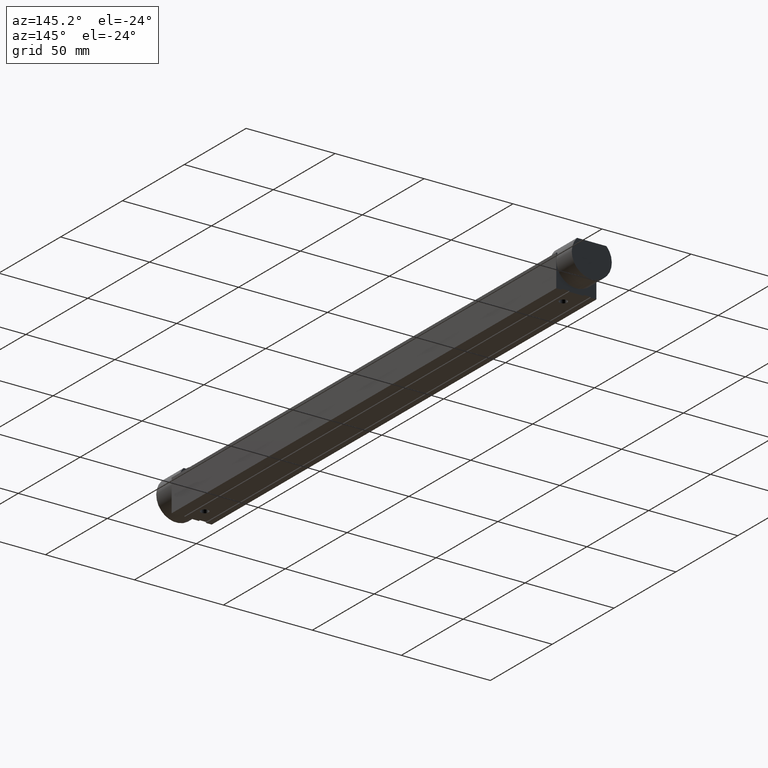
[diagram: clean part render]
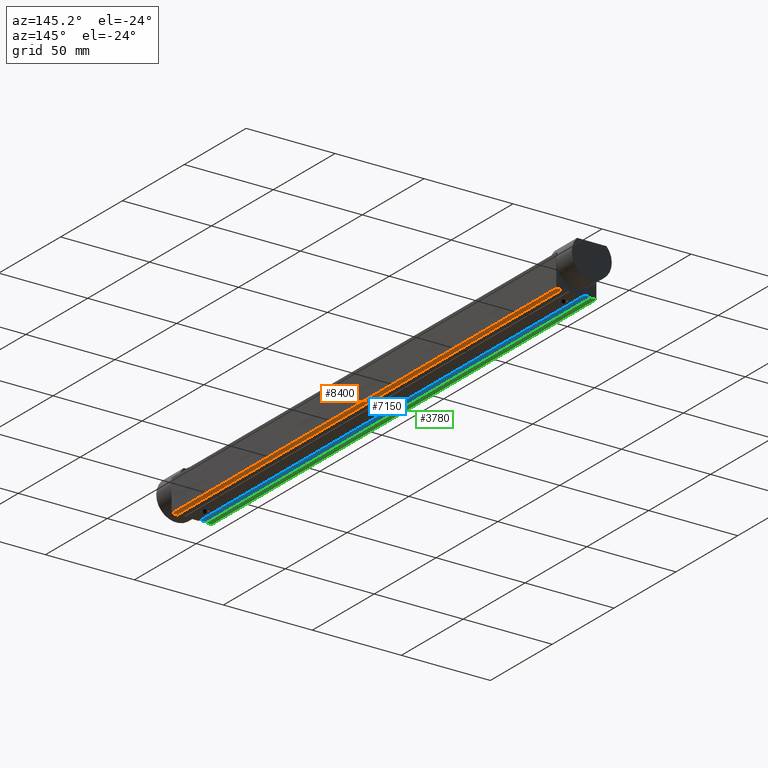
[diagram: same view with three faces highlighted in distinct colors, each labeled with its STEP entity id]
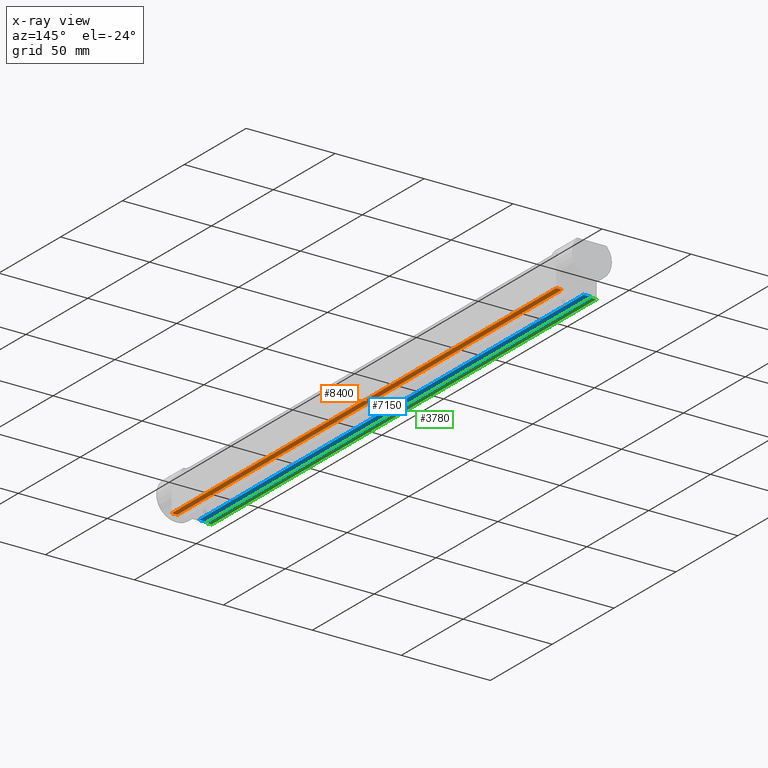
[diagram: x-ray of the same camera — body ghosted, the three highlighted faces saturated]
A machine part, auxiliary view with three faces highlighted in distinct colors.
The next image is the same camera in x-ray (body ghosted, the three faces saturated) — at least one of them is partly hidden behind the body in this view.
Their STEP definitions:

[orange] entity #8400 — the highlighted planar face has unit normal (-0, -0, 1).
#2440=CARTESIAN_POINT('',(323.5,11.25,-4.));
#2450=VERTEX_POINT('',#2440);
#2480=CARTESIAN_POINT('',(0.,11.25,-4.));
#2490=DIRECTION('',(-1.,0.,0.));
#2500=VECTOR('',#2490,1.);
#2510=LINE('',#2480,#2500);
#2520=CARTESIAN_POINT('',(12.5,11.25,-4.));
#2530=VERTEX_POINT('',#2520);
#2540=EDGE_CURVE('',#2450,#2530,#2510,.T.);
#4640=CARTESIAN_POINT('',(12.5,0.,-4.));
#4650=DIRECTION('',(0.,-1.,0.));
#4660=VECTOR('',#4650,1.);
#4670=LINE('',#4640,#4660);
#4680=CARTESIAN_POINT('',(12.5,7.99999999999999,-4.));
#4690=VERTEX_POINT('',#4680);
#4700=EDGE_CURVE('',#2530,#4690,#4670,.T.);
#7950=CARTESIAN_POINT('',(323.5,7.99999999999999,-4.));
#7960=VERTEX_POINT('',#7950);
#8080=CARTESIAN_POINT('',(0.,7.99999999999999,-4.));
#8090=DIRECTION('',(-1.,0.,0.));
#8100=VECTOR('',#8090,1.);
#8110=LINE('',#8080,#8100);
#8120=EDGE_CURVE('',#7960,#4690,#8110,.T.);
#8240=CARTESIAN_POINT('',(183.5,7.99999999999999,-4.));
#8250=DIRECTION('',(-0.,-0.,-1.));
#8260=DIRECTION('',(0.,-1.,0.));
#8270=AXIS2_PLACEMENT_3D('',#8240,#8250,#8260);
#8280=PLANE('',#8270);
#8290=CARTESIAN_POINT('',(323.5,0.,-4.));
#8300=DIRECTION('',(0.,1.,0.));
#8310=VECTOR('',#8300,1.);
#8320=LINE('',#8290,#8310);
#8330=EDGE_CURVE('',#7960,#2450,#8320,.T.);
#8340=ORIENTED_EDGE('',*,*,#8330,.T.);
#8350=ORIENTED_EDGE('',*,*,#8120,.F.);
#8360=ORIENTED_EDGE('',*,*,#4700,.T.);
#8370=ORIENTED_EDGE('',*,*,#2540,.T.);
#8380=EDGE_LOOP('',(#8370,#8360,#8350,#8340));
#8390=FACE_OUTER_BOUND('',#8380,.T.);
#8400=ADVANCED_FACE('',(#8390),#8280,.F.);

[blue] entity #7150 — the highlighted planar face has unit normal (-0, -0, 1).
#4990=CARTESIAN_POINT('',(12.5,-4.00000000000001,-4.50000000000001));
#5000=VERTEX_POINT('',#4990);
#5030=CARTESIAN_POINT('',(12.5,0.,-4.50000000000001));
#5040=DIRECTION('',(0.,-1.,0.));
#5050=VECTOR('',#5040,1.);
#5060=LINE('',#5030,#5050);
#5070=CARTESIAN_POINT('',(12.5,-8.,-4.50000000000001));
#5080=VERTEX_POINT('',#5070);
#5090=EDGE_CURVE('',#5000,#5080,#5060,.T.);
#6700=CARTESIAN_POINT('',(323.5,-8.,-4.50000000000001));
#6710=VERTEX_POINT('',#6700);
#6760=CARTESIAN_POINT('',(0.,-8.,-4.50000000000001));
#6770=DIRECTION('',(-1.,0.,0.));
#6780=VECTOR('',#6770,1.);
#6790=LINE('',#6760,#6780);
#6800=EDGE_CURVE('',#6710,#5080,#6790,.T.);
#6920=CARTESIAN_POINT('',(183.5,-8.,-4.50000000000001));
#6930=DIRECTION('',(-0.,-0.,-1.));
#6940=DIRECTION('',(0.,-1.,0.));
#6950=AXIS2_PLACEMENT_3D('',#6920,#6930,#6940);
#6960=PLANE('',#6950);
#6970=CARTESIAN_POINT('',(323.5,-7.75,-4.50000000000001));
#6980=DIRECTION('',(0.,1.,0.));
#6990=VECTOR('',#6980,1.);
#7000=LINE('',#6970,#6990);
#7010=CARTESIAN_POINT('',(323.5,-4.00000000000001,-4.50000000000001));
#7020=VERTEX_POINT('',#7010);
#7030=EDGE_CURVE('',#6710,#7020,#7000,.T.);
#7040=ORIENTED_EDGE('',*,*,#7030,.T.);
#7050=ORIENTED_EDGE('',*,*,#6800,.F.);
#7060=ORIENTED_EDGE('',*,*,#5090,.T.);
#7070=CARTESIAN_POINT('',(0.,-4.00000000000001,-4.50000000000001));
#7080=DIRECTION('',(-1.,0.,0.));
#7090=VECTOR('',#7080,1.);
#7100=LINE('',#7070,#7090);
#7110=EDGE_CURVE('',#7020,#5000,#7100,.T.);
#7120=ORIENTED_EDGE('',*,*,#7110,.T.);
#7130=EDGE_LOOP('',(#7120,#7060,#7050,#7040));
#7140=FACE_OUTER_BOUND('',#7130,.T.);
#7150=ADVANCED_FACE('',(#7140),#6960,.F.);

[green] entity #3780 — the highlighted planar face has unit normal (-0, -0, 1).
#2760=CARTESIAN_POINT('',(12.5,-11.25,-4.));
#2770=VERTEX_POINT('',#2760);
#2800=CARTESIAN_POINT('',(0.,-11.25,-4.));
#2810=DIRECTION('',(-1.,0.,0.));
#2820=VECTOR('',#2810,1.);
#2830=LINE('',#2800,#2820);
#2840=CARTESIAN_POINT('',(323.5,-11.25,-4.));
#2850=VERTEX_POINT('',#2840);
#2860=EDGE_CURVE('',#2850,#2770,#2830,.T.);
#3480=CARTESIAN_POINT('',(183.5,-11.25,-4.));
#3490=DIRECTION('',(-0.,-0.,-1.));
#3500=DIRECTION('',(0.,-1.,0.));
#3510=AXIS2_PLACEMENT_3D('',#3480,#3490,#3500);
#3520=PLANE('',#3510);
#3530=CARTESIAN_POINT('',(323.5,0.,-4.));
#3540=DIRECTION('',(0.,1.,0.));
#3550=VECTOR('',#3540,1.);
#3560=LINE('',#3530,#3550);
#3570=CARTESIAN_POINT('',(323.5,-8.,-4.));
#3580=VERTEX_POINT('',#3570);
#3590=EDGE_CURVE('',#2850,#3580,#3560,.T.);
#3600=ORIENTED_EDGE('',*,*,#3590,.T.);
#3610=ORIENTED_EDGE('',*,*,#2860,.F.);
#3620=CARTESIAN_POINT('',(12.5,0.,-4.));
#3630=DIRECTION('',(0.,-1.,0.));
#3640=VECTOR('',#3630,1.);
#3650=LINE('',#3620,#3640);
#3660=CARTESIAN_POINT('',(12.5,-8.,-4.));
#3670=VERTEX_POINT('',#3660);
#3680=EDGE_CURVE('',#3670,#2770,#3650,.T.);
#3690=ORIENTED_EDGE('',*,*,#3680,.T.);
#3700=CARTESIAN_POINT('',(0.,-8.,-4.));
#3710=DIRECTION('',(-1.,0.,0.));
#3720=VECTOR('',#3710,1.);
#3730=LINE('',#3700,#3720);
#3740=EDGE_CURVE('',#3580,#3670,#3730,.T.);
#3750=ORIENTED_EDGE('',*,*,#3740,.T.);
#3760=EDGE_LOOP('',(#3750,#3690,#3610,#3600));
#3770=FACE_OUTER_BOUND('',#3760,.T.);
#3780=ADVANCED_FACE('',(#3770),#3520,.F.);